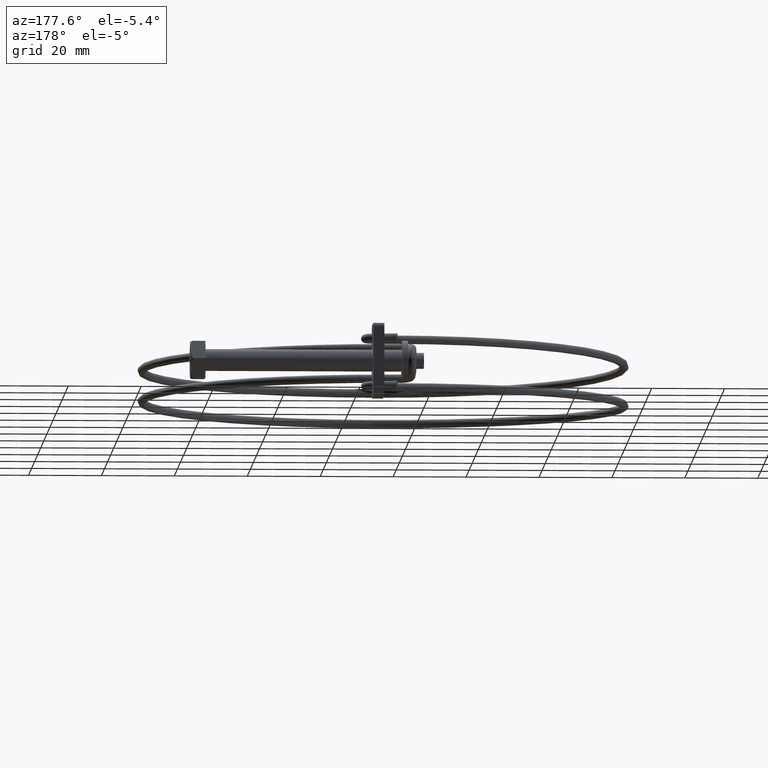
[diagram: clean part render]
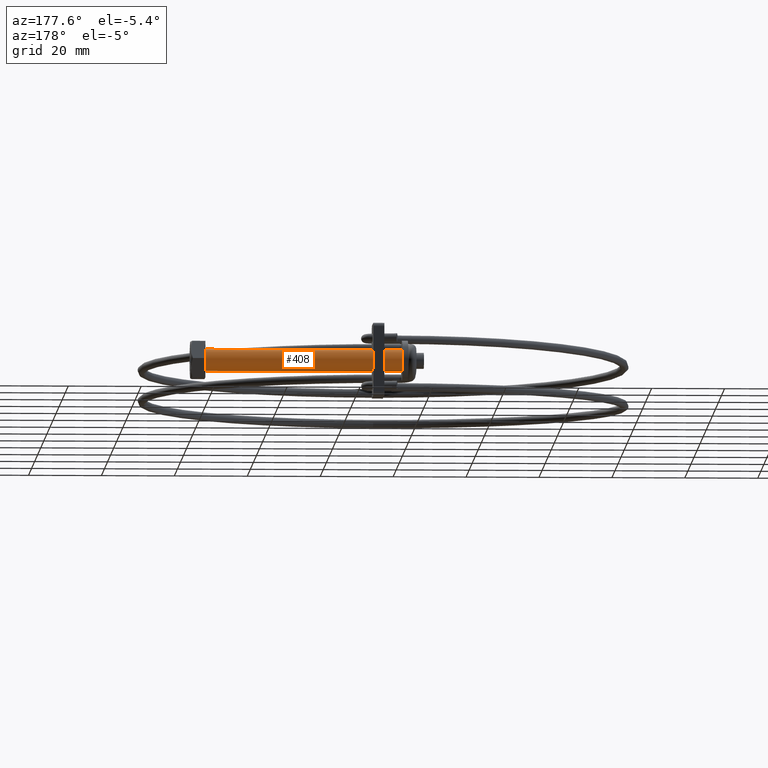
[diagram: same view with one face highlighted and labeled with its STEP entity id]
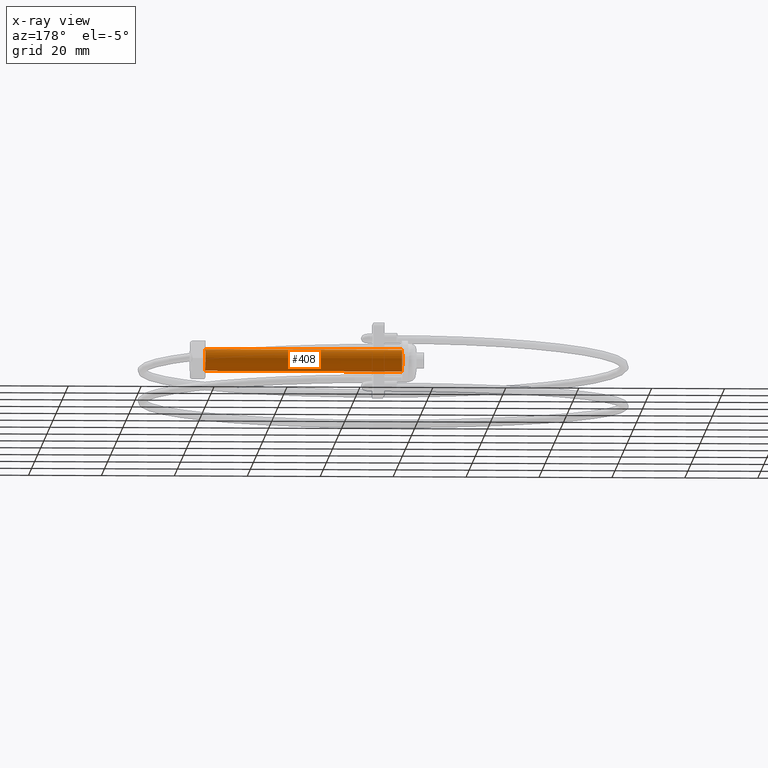
[diagram: x-ray of the same camera — body ghosted, the highlighted face saturated]
A machine part, auxiliary view. The second image highlights one B-rep face of the part: STEP entity #408.
The next image is the same camera in x-ray: the body ghosted, the highlighted face saturated — about 0% of this face is hidden behind the body in this view.
In plain terms, the highlighted cylindrical surface (edge-blend (fillet) strip) has radius 3 mm, axis along (1, 0, 0).
Its self-contained STEP definition (entity closure, byte-faithful):
#9 = EDGE_CURVE ( 'NONE', #420, #1024, #2662, .T. ) ;
#10 = CARTESIAN_POINT ( 'NONE',  ( -54.00000000000000000, 0.0000000000000000000, -3.000000000000000400 ) ) ;
#165 = CIRCLE ( 'NONE', #2608, 3.000000000000000400 ) ;
#242 = DIRECTION ( 'NONE',  ( 1.000000000000000000, 0.0000000000000000000, 0.0000000000000000000 ) ) ;
#255 = CYLINDRICAL_SURFACE ( 'NONE', #814, 3.000000000000000400 ) ;
#259 = CARTESIAN_POINT ( 'NONE',  ( 0.0000000000000000000, 0.0000000000000000000, -3.000000000000000400 ) ) ;
#296 = CARTESIAN_POINT ( 'NONE',  ( -54.00000000000000000, 3.673940397442060400E-016, 3.000000000000000400 ) ) ;
#359 = CARTESIAN_POINT ( 'NONE',  ( -54.00000000000000000, 0.0000000000000000000, 0.0000000000000000000 ) ) ;
#408 = ADVANCED_FACE ( 'NONE', ( #968 ), #255, .T. ) ;
#420 = VERTEX_POINT ( 'NONE', #296 ) ;
#437 = ORIENTED_EDGE ( 'NONE', *, *, #2937, .T. ) ;
#468 = DIRECTION ( 'NONE',  ( 1.000000000000000000, 0.0000000000000000000, 0.0000000000000000000 ) ) ;
#498 = ORIENTED_EDGE ( 'NONE', *, *, #2555, .F. ) ;
#591 = DIRECTION ( 'NONE',  ( 0.0000000000000000000, 0.0000000000000000000, 1.000000000000000000 ) ) ;
#808 = CARTESIAN_POINT ( 'NONE',  ( 0.0000000000000000000, 3.673940397442060400E-016, 3.000000000000000400 ) ) ;
#814 = AXIS2_PLACEMENT_3D ( 'NONE', #2903, #468, #2894 ) ;
#968 = FACE_OUTER_BOUND ( 'NONE', #2168, .T. ) ;
#1024 = VERTEX_POINT ( 'NONE', #808 ) ;
#1316 = CARTESIAN_POINT ( 'NONE',  ( 0.0000000000000000000, 0.0000000000000000000, 0.0000000000000000000 ) ) ;
#1452 = CIRCLE ( 'NONE', #2752, 3.000000000000000400 ) ;
#1557 = DIRECTION ( 'NONE',  ( 0.0000000000000000000, 0.0000000000000000000, -1.000000000000000000 ) ) ;
#1774 = VERTEX_POINT ( 'NONE', #10 ) ;
#1845 = CARTESIAN_POINT ( 'NONE',  ( -54.00000000000000000, 3.673940397442060400E-016, 3.000000000000000400 ) ) ;
#1863 = ORIENTED_EDGE ( 'NONE', *, *, #2931, .F. ) ;
#1874 = LINE ( 'NONE', #1933, #2519 ) ;
#1933 = CARTESIAN_POINT ( 'NONE',  ( -54.00000000000000000, 0.0000000000000000000, -3.000000000000000400 ) ) ;
#2025 = VECTOR ( 'NONE', #2594, 1000.000000000000000 ) ;
#2054 = DIRECTION ( 'NONE',  ( 1.000000000000000000, -0.0000000000000000000, -0.0000000000000000000 ) ) ;
#2168 = EDGE_LOOP ( 'NONE', ( #437, #3098, #1863, #498 ) ) ;
#2519 = VECTOR ( 'NONE', #242, 1000.000000000000000 ) ;
#2555 = EDGE_CURVE ( 'NONE', #1774, #2590, #1874, .T. ) ;
#2590 = VERTEX_POINT ( 'NONE', #259 ) ;
#2594 = DIRECTION ( 'NONE',  ( 1.000000000000000000, 0.0000000000000000000, 0.0000000000000000000 ) ) ;
#2608 = AXIS2_PLACEMENT_3D ( 'NONE', #1316, #3001, #1557 ) ;
#2662 = LINE ( 'NONE', #1845, #2025 ) ;
#2752 = AXIS2_PLACEMENT_3D ( 'NONE', #359, #2054, #591 ) ;
#2894 = DIRECTION ( 'NONE',  ( 0.0000000000000000000, 0.0000000000000000000, -1.000000000000000000 ) ) ;
#2903 = CARTESIAN_POINT ( 'NONE',  ( -54.00000000000000000, 0.0000000000000000000, 0.0000000000000000000 ) ) ;
#2931 = EDGE_CURVE ( 'NONE', #2590, #1024, #165, .T. ) ;
#2937 = EDGE_CURVE ( 'NONE', #1774, #420, #1452, .T. ) ;
#3001 = DIRECTION ( 'NONE',  ( 1.000000000000000000, 0.0000000000000000000, 0.0000000000000000000 ) ) ;
#3098 = ORIENTED_EDGE ( 'NONE', *, *, #9, .T. ) ;